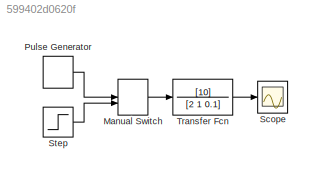
MODEL slx_599402d0620f
KIND model
CONFIG AbsTol = auto
CONFIG EnableMultiTasking = off
CONFIG FixedStep = auto
CONFIG MaxStep = auto
CONFIG MinStep = auto
CONFIG RelTol = 1e-3
CONFIG SampleTimeConstraint = Unconstrained
CONFIG SolverName = VariableStepAuto
CONFIG StartTime = 0.0
CONFIG StopTime = 300
BLOCK [ManualSwitch] Manual Switch
  CurrentSetting = 0
BLOCK [DiscretePulseGenerator] Pulse Generator
  Period = 10
  Ports = [0, 1]
  PulseType = Time based
  PulseWidth = 5
BLOCK [Scope] Scope
  Floating = off
  NumInputPorts = 1
  Ports = [1]
  ScopeSpecificationString = Simulink.scopes.TimeScopeBlockCfg('CurrentConfiguration', extmgr.ConfigurationSet(extmgr.Configuration('Core','General UI',true),extmgr.Configuration('Core','Source UI',true),extmgr.Configuration('Sources','WiredSimulink',true),extmgr.Configuration('Visuals','Time Domain',true,'SerializedDisplays',{struct('MinYLimReal','-12.5','MaxYLimReal','112.5','YLabelReal','','MinYLimMag','0.00000','MaxYLimMa...<+1347ch>
BLOCK [Step] Step
  SampleTime = 0
BLOCK [TransferFcn] Transfer Fcn
  Denominator = [2 1 0.1]
  Numerator = [10]
LINE Manual Switch:1 -> Transfer Fcn:1
LINE Pulse Generator:1 -> Manual Switch:1
LINE Step:1 -> Manual Switch:2
LINE Transfer Fcn:1 -> Scope:1
